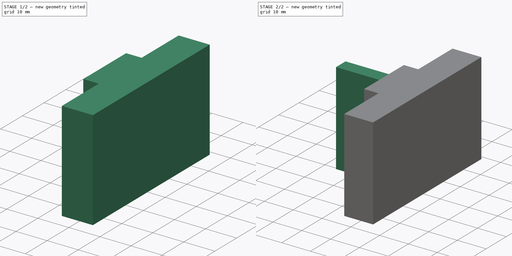
[diagram: build sequence overview — one tinted view per stage of 2, left to right]
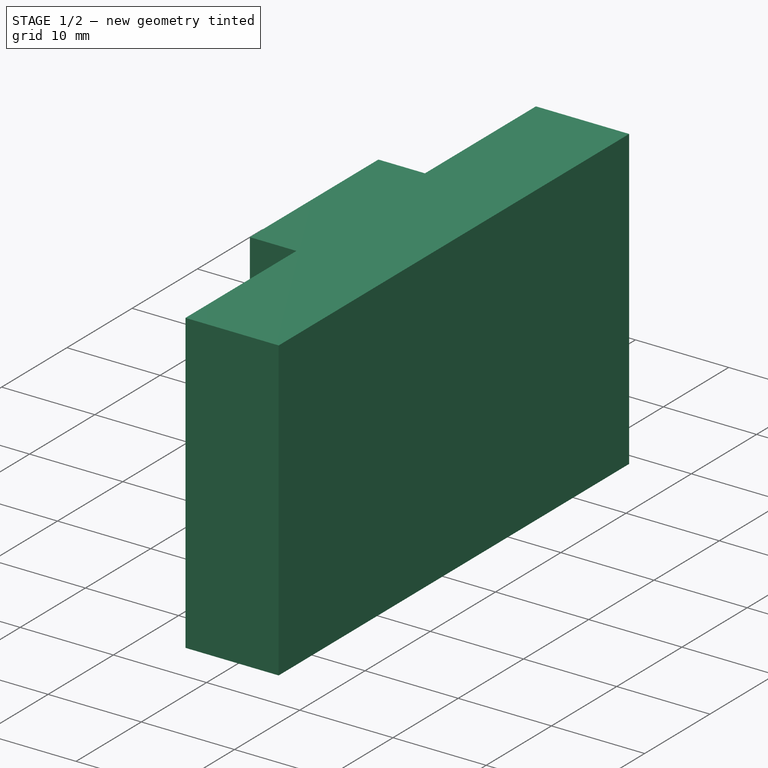
[diagram: stage 1 of 2 — iso view after this stage's code; geometry added in this stage tinted green]
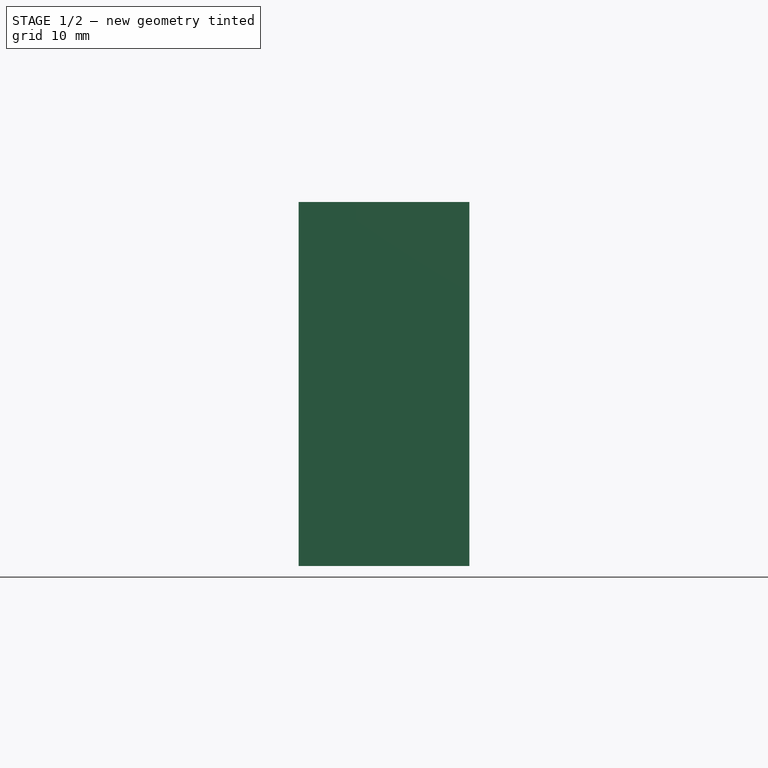
[diagram: stage 1 of 2 — front view after this stage's code; geometry added in this stage tinted green]
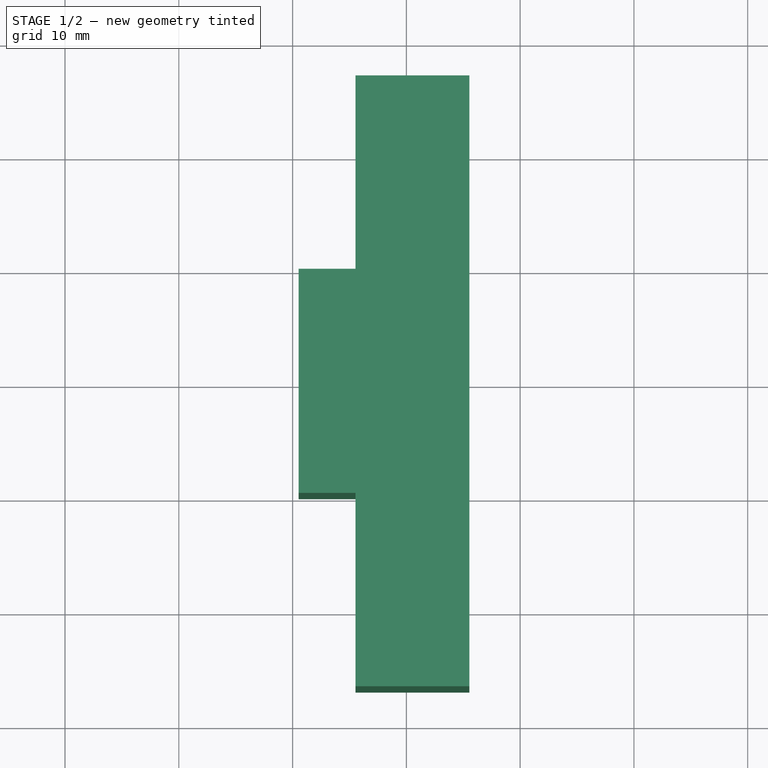
[diagram: stage 1 of 2 — top view after this stage's code; geometry added in this stage tinted green]
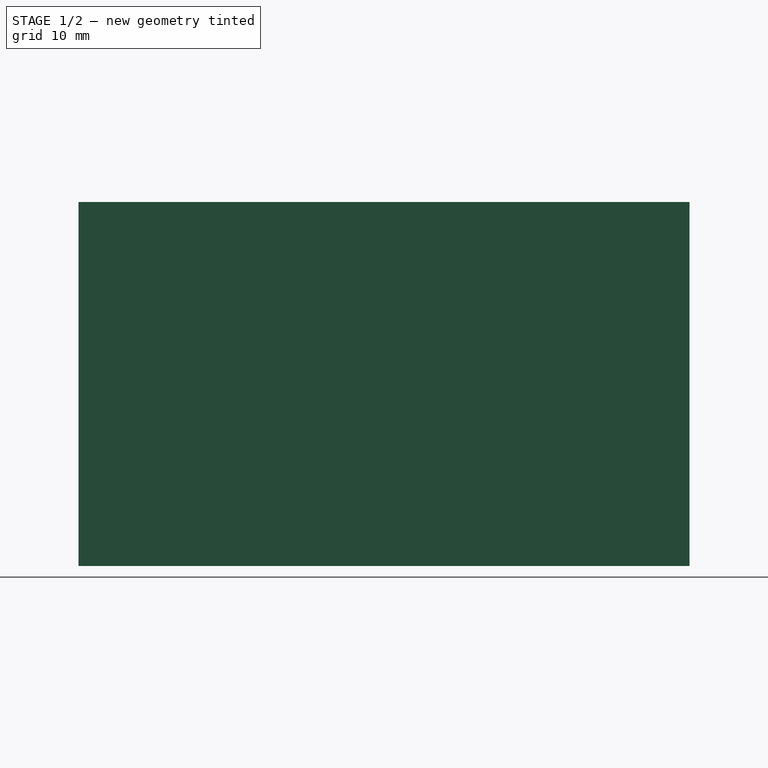
[diagram: stage 1 of 2 — right view after this stage's code; geometry added in this stage tinted green]
FCSTD DOCUMENT  (FreeCAD 0.21R33694 (Git))
Label: Spacer_B0
License: All rights reserved
LicenseURL: https://en.wikipedia.org/wiki/All_rights_reserved
objects: Sketcher::SketchObject×2, PartDesign::Pad×2, Spreadsheet::Sheet×1, PartDesign::Body×1
note: 7 computed .brp shape members not serialized (recipe doc carries the construction recipe); baked Part::Feature solids carry a one-line shape summary decoded from their .brp

FEATURE [Sketcher::SketchObject] Sketch005
  FullyConstrained = true
  MapMode = 5
  Support = -> [XY_Plane001]
  expr: Constraints[13] = 20 mm - Spreadsheet.tl
  expr: Constraints[16] = 54 mm - Spreadsheet.tl
  sketch-geometry (8):
    g0: LineSegment StartX=-9.46598 StartY=9.85 StartZ=0 EndX=-9.46598 EndY=-9.85 EndZ=0
    g1: LineSegment StartX=-9.46598 StartY=-9.85 StartZ=0 EndX=-4.46598 EndY=-9.85 EndZ=0
    g2: LineSegment StartX=-4.46598 StartY=-9.85 StartZ=0 EndX=-4.46598 EndY=-26.85 EndZ=0
    g3: LineSegment StartX=-4.46598 StartY=-26.85 StartZ=0 EndX=5.53402 EndY=-26.85 EndZ=0
    g4: LineSegment StartX=5.53402 StartY=-26.85 StartZ=0 EndX=5.53402 EndY=26.85 EndZ=0
    g5: LineSegment StartX=5.53402 StartY=26.85 StartZ=0 EndX=-4.46598 EndY=26.85 EndZ=0
    g6: LineSegment StartX=-4.46598 StartY=26.85 StartZ=0 EndX=-4.46598 EndY=9.85 EndZ=0
    g7: LineSegment StartX=-4.46598 StartY=9.85 StartZ=0 EndX=-9.46598 EndY=9.85 EndZ=0
  constraints (22):
    c: Coincident(g1,g0)
    c: Horizontal(g1)
    c: Coincident(g2,g1)
    c: Vertical(g2)
    c: Coincident(g3,g2)
    c: Horizontal(g3)
    c: Coincident(g4,g3)
    c: Coincident(g5,g4)
    c: Horizontal(g5)
    c: Coincident(g6,g5)
    c: Vertical(g6)
    c: Coincident(g7,g6)
    c: Coincident(g7,g0)
    c: DistanceY(g0,g0) = 19.7
    c: DistanceX(g1,g1) = 5
    c: DistanceX(g7,g7) = 5
    c: DistanceY(g4,g4) = 53.7
    c: Perpendicular(g6,g7)
    c: DistanceX(g3,g3) = 10
    c: Symmetric(g0,g0,g-1)
    c: Symmetric(g4,g3,g-1)
    c: Block(g0)
FEATURE [PartDesign::Pad] Pad003
  Direction = (0,0,1)
  Length = 32
  Length2 = 10
  Profile = -> Sketch005
  ReferenceAxis = -> Sketch005 [N_Axis]
  Type = 0
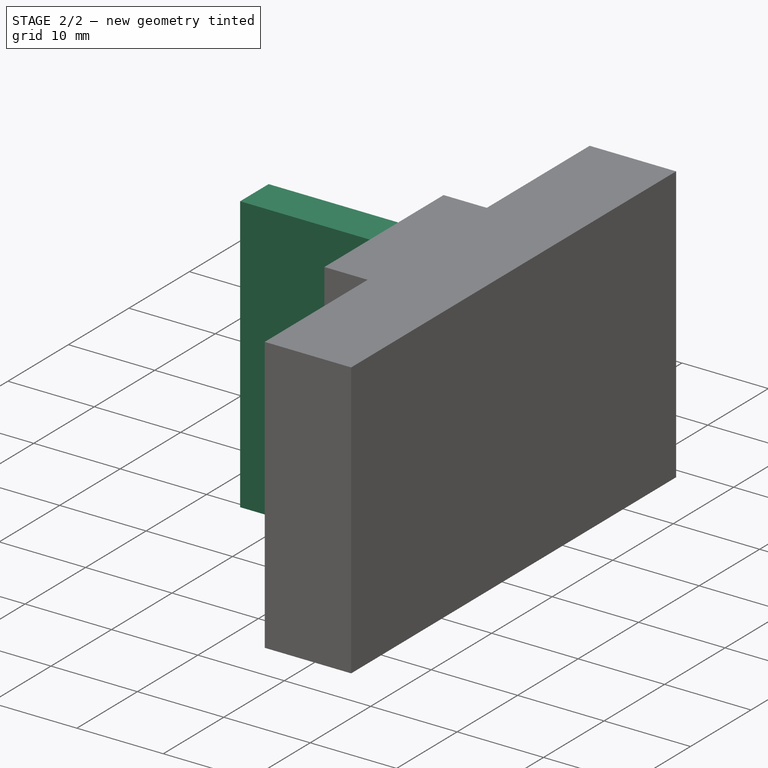
[diagram: stage 2 of 2 — iso view after this stage's code; geometry added in this stage tinted green]
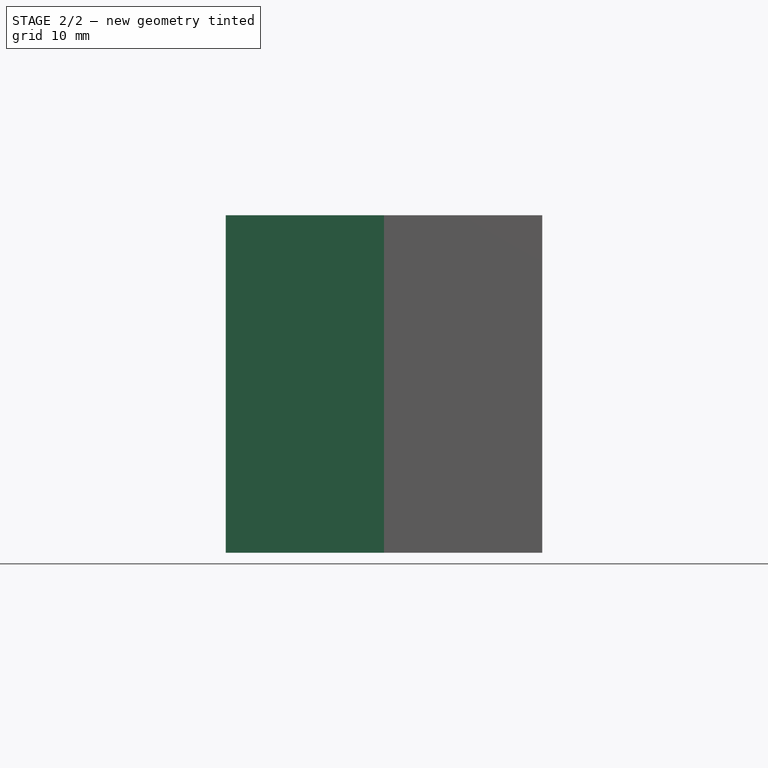
[diagram: stage 2 of 2 — front view after this stage's code; geometry added in this stage tinted green]
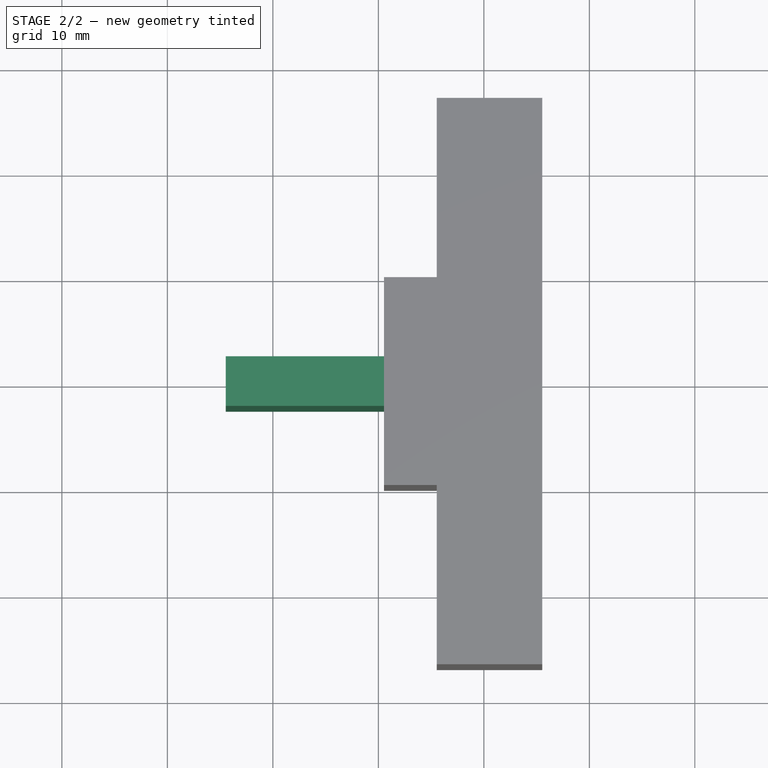
[diagram: stage 2 of 2 — top view after this stage's code; geometry added in this stage tinted green]
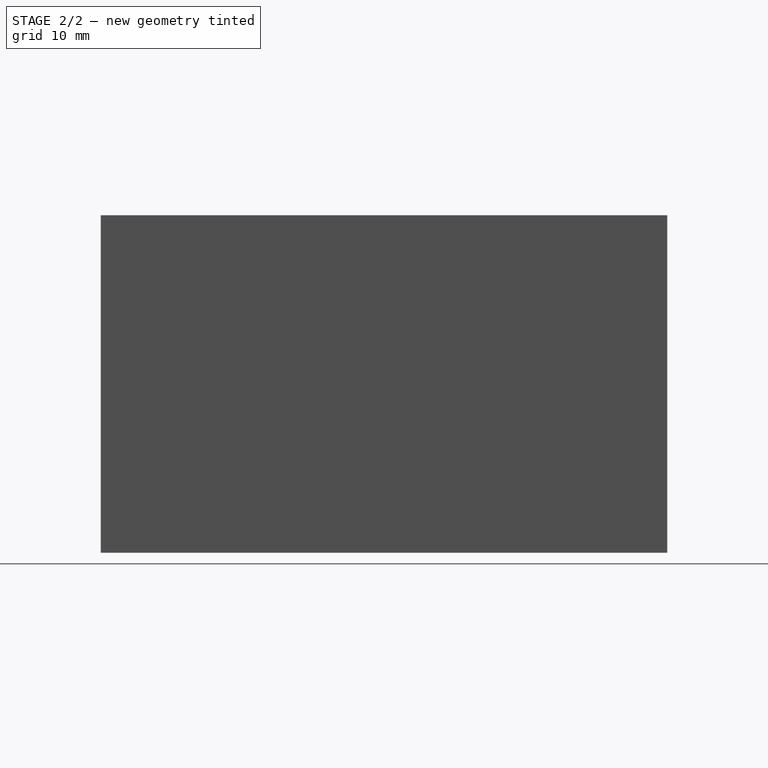
[diagram: stage 2 of 2 — right view after this stage's code; geometry added in this stage tinted green]
FEATURE [Spreadsheet::Sheet] Spreadsheet
  cells = A1='tollerance; B1(tl)==0.3 mm
FEATURE [Sketcher::SketchObject] Sketch
  ExternalGeometry = -> [Pad003]
  FullyConstrained = true
  MapMode = 5
  Support = -> [XY_Plane001]
  expr: Constraints[8] = 5 mm - Spreadsheet.tl
  sketch-geometry (4):
    g0: LineSegment StartX=-24.466 StartY=2.35 StartZ=0 EndX=-9.46598 EndY=2.35 EndZ=0
    g1: LineSegment StartX=-9.46598 StartY=2.35 StartZ=0 EndX=-9.46598 EndY=-2.35 EndZ=0
    g2: LineSegment StartX=-9.46598 StartY=-2.35 StartZ=0 EndX=-24.466 EndY=-2.35 EndZ=0
    g3: LineSegment StartX=-24.466 StartY=-2.35 StartZ=0 EndX=-24.466 EndY=2.35 EndZ=0
  constraints (11):
    c: Coincident(g0,g1)
    c: Coincident(g1,g2)
    c: Coincident(g2,g3)
    c: Coincident(g3,g0)
    c: Horizontal(g0)
    c: Horizontal(g2)
    c: Vertical(g3)
    c: Symmetric(g0,g1,g-1)
    c: DistanceY(g3,g3) = 4.7
    c: DistanceX(g0,g0) = 15
    c: DistanceX(g0,g-3) = 0
FEATURE [PartDesign::Pad] Pad
  BaseFeature = -> Pad003
  Direction = (0,0,1)
  Length = 32
  Length2 = 10
  Profile = -> Sketch
  ReferenceAxis = -> Sketch [N_Axis]
  Type = 0
FEATURE [PartDesign::Body] Body001  label="Spacer"
  Group = -> [Sketch005,Pad003,Sketch,Pad]
  Origin = -> Origin001
  Tip = -> Pad
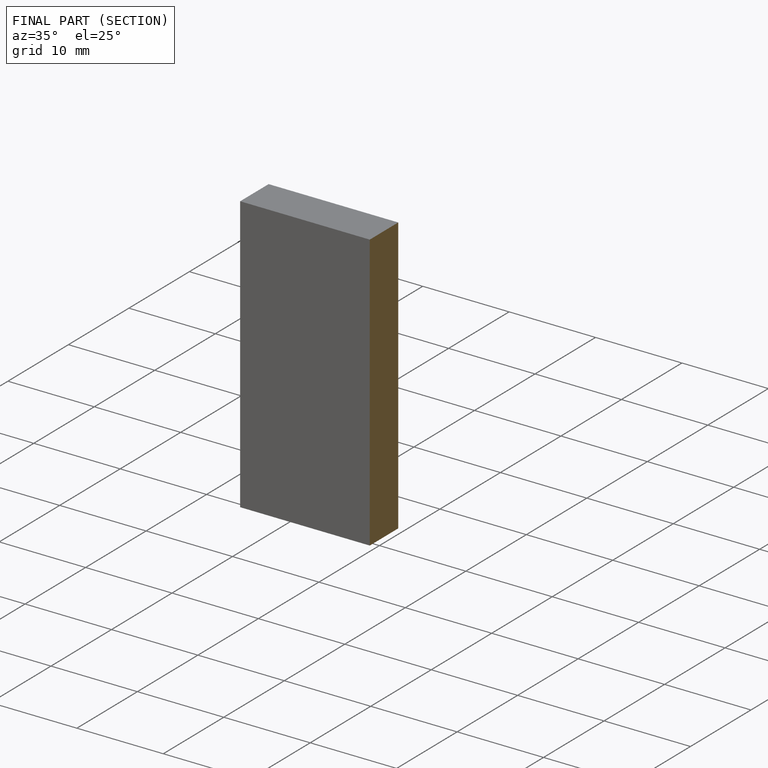
[diagram: finished part — half-section view (interior)]
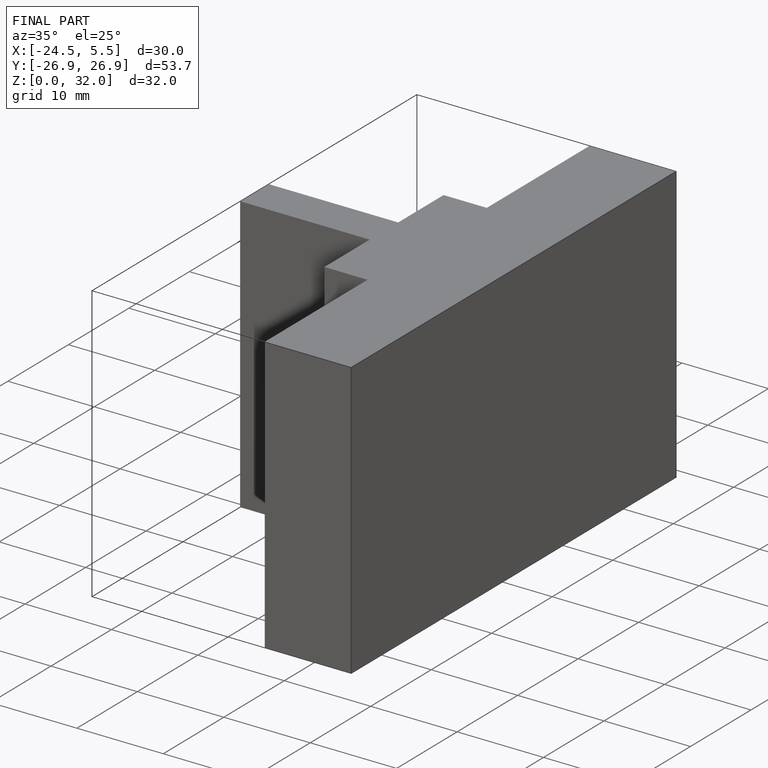
[diagram: finished part — iso view with bounding-box wireframe]
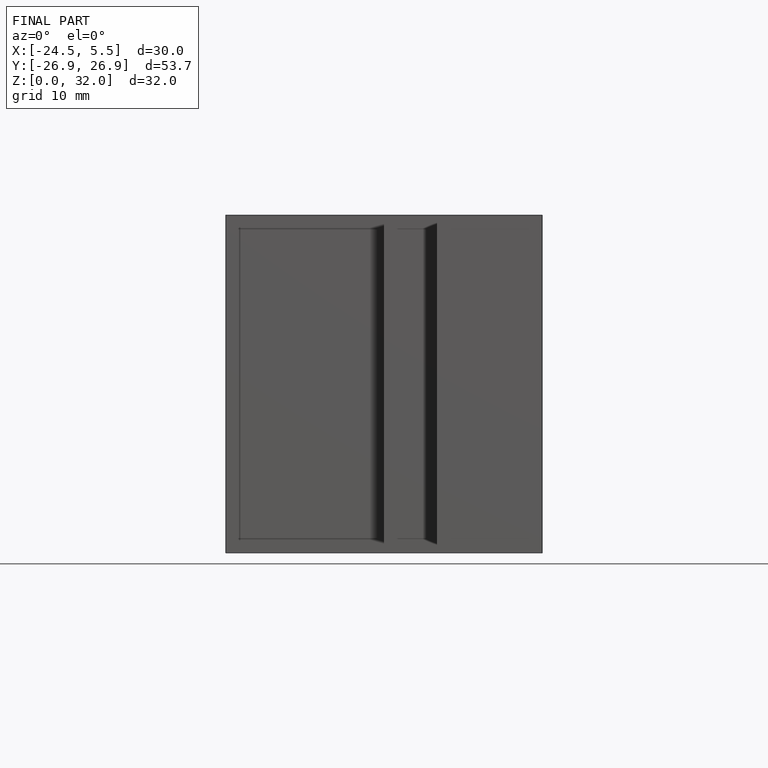
[diagram: finished part — front view with bounding-box wireframe]
